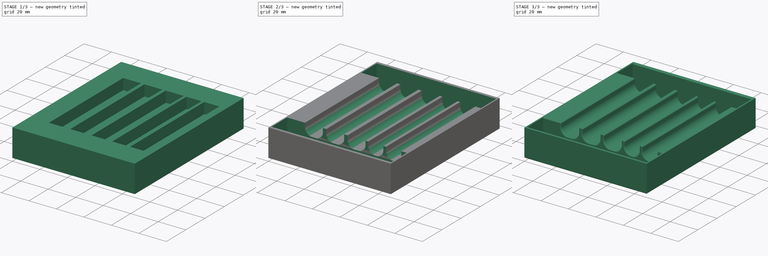
[diagram: build sequence overview — one tinted view per stage of 3, left to right]
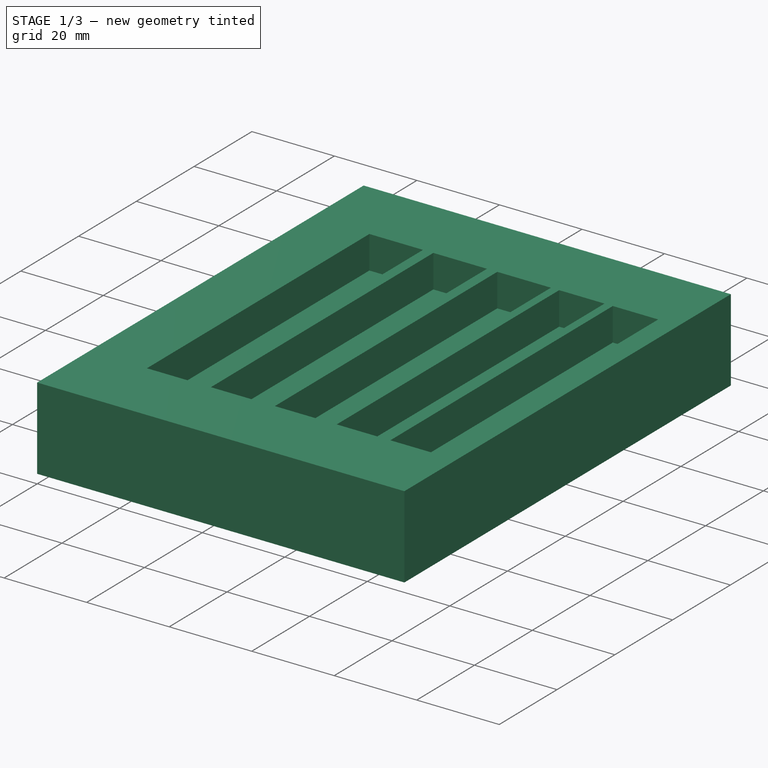
[diagram: stage 1 of 3 — iso view after this stage's code; geometry added in this stage tinted green]
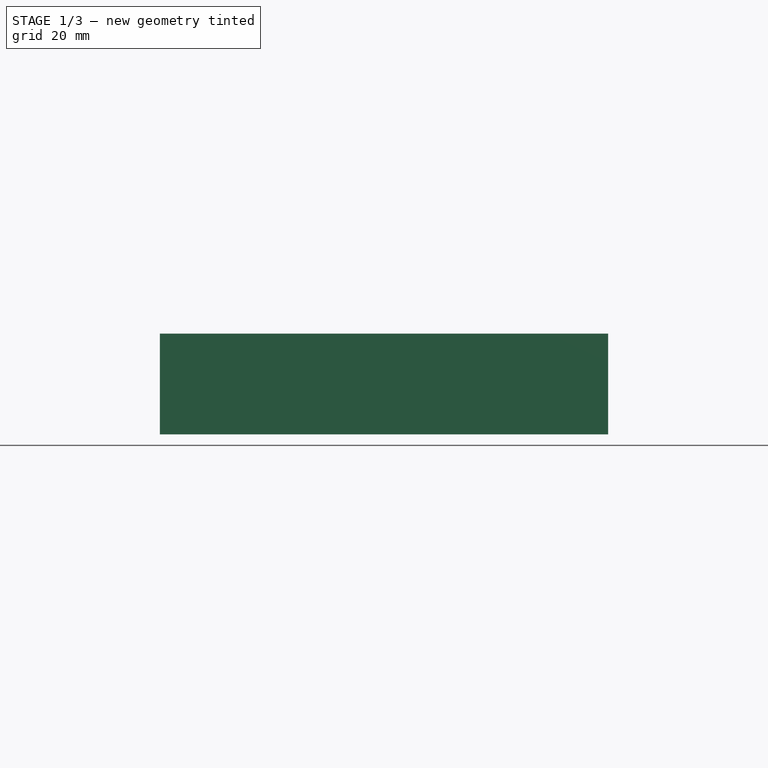
[diagram: stage 1 of 3 — front view after this stage's code; geometry added in this stage tinted green]
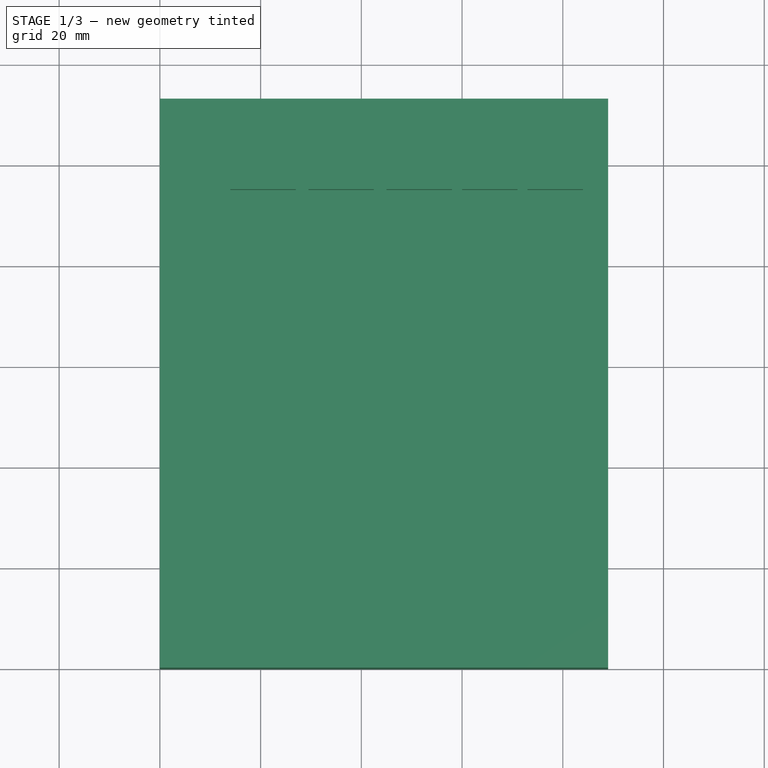
[diagram: stage 1 of 3 — top view after this stage's code; geometry added in this stage tinted green]
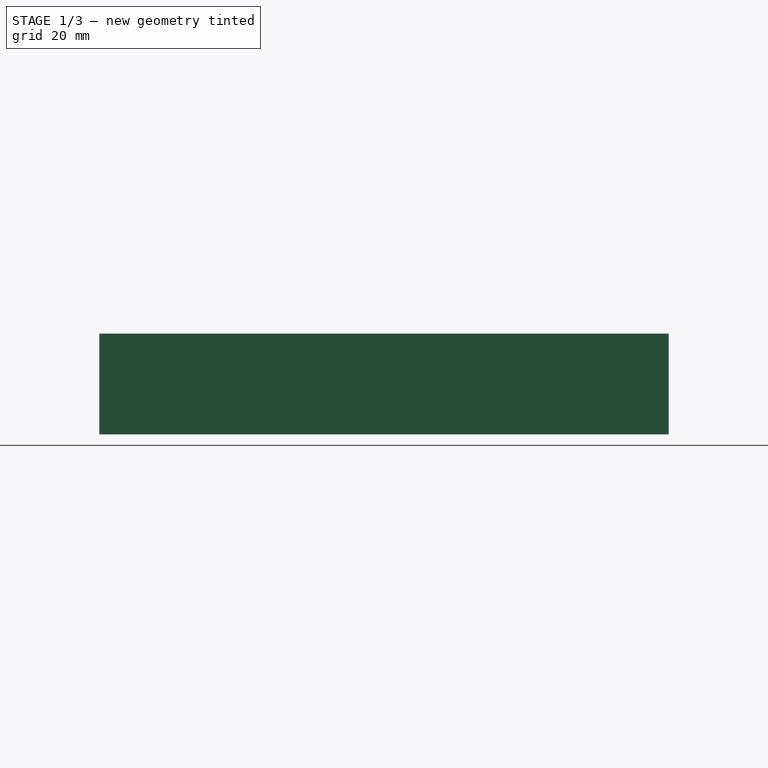
[diagram: stage 1 of 3 — right view after this stage's code; geometry added in this stage tinted green]
FCSTD DOCUMENT  (FreeCAD 1.0R39319 (Git))
Label: Oksaporateline
License: All rights reserved
LicenseURL: https://en.wikipedia.org/wiki/All_rights_reserved
objects: Sketcher::SketchObject×3, PartDesign::Pocket×2, PartDesign::Fillet×2, PartDesign::Pad×1, PartDesign::Chamfer×1, PartDesign::Body×1
note: 25 computed .brp shape members not serialized (recipe doc carries the construction recipe); baked Part::Feature solids carry a one-line shape summary decoded from their .brp

FEATURE [Sketcher::SketchObject] Sketch
  ArcFitTolerance = 1e-06
  AttachmentSupport = -> [XY_Plane]
  FullyConstrained = true
  MakeInternals = false
  MapMode = 5
  sketch-geometry (4):
    g0: LineSegment StartX=0 StartY=0 StartZ=0 EndX=89 EndY=0 EndZ=0
    g1: LineSegment StartX=89 StartY=0 StartZ=0 EndX=89 EndY=113 EndZ=0
    g2: LineSegment StartX=89 StartY=113 StartZ=0 EndX=0 EndY=113 EndZ=0
    g3: LineSegment StartX=0 StartY=113 StartZ=0 EndX=0 EndY=0 EndZ=0
  constraints (11):
    c: Coincident(g0,g1)
    c: Coincident(g1,g2)
    c: Coincident(g2,g3)
    c: Coincident(g3,g0)
    c: Horizontal(g0)
    c: Horizontal(g2)
    c: Vertical(g1)
    c: Vertical(g3)
    c: Coincident(g0,g-1)
    c: DistanceX(g0,g0) = 89
    c: DistanceY(g3,g3) = 113
FEATURE [PartDesign::Pad] Pad
  Direction = (0,0,1)
  Length = 20
  Length2 = 10
  Profile = -> Sketch
  ReferenceAxis = -> Sketch [N_Axis]
  Refine = true
  Suppressed = false
  Type = 0
FEATURE [Sketcher::SketchObject] Sketch001
  ArcFitTolerance = 1e-06
  AttachmentSupport = -> [Pad]
  FullyConstrained = true
  MakeInternals = false
  MapMode = 5
  Placement = pos=(0,0,20) rot=(0,0,1;0rad)
  sketch-geometry (26):
    g0: LineSegment StartX=14 StartY=95 StartZ=0 EndX=14 EndY=18 EndZ=0
    g1: LineSegment StartX=14 StartY=18 StartZ=0 EndX=27 EndY=18 EndZ=0
    g2: LineSegment StartX=27 StartY=18 StartZ=0 EndX=27 EndY=95 EndZ=0
    g3: LineSegment StartX=27 StartY=95 StartZ=0 EndX=14 EndY=95 EndZ=0
    g4: LineSegment StartX=29.5 StartY=95 StartZ=0 EndX=29.5 EndY=18 EndZ=0
    g5: LineSegment StartX=29.5 StartY=18 StartZ=0 EndX=42.5 EndY=18 EndZ=0
    g6: LineSegment StartX=42.5 StartY=18 StartZ=0 EndX=42.5 EndY=95 EndZ=0
    g7: LineSegment StartX=42.5 StartY=95 StartZ=0 EndX=29.5 EndY=95 EndZ=0
    g8: LineSegment StartX=45 StartY=95 StartZ=0 EndX=45 EndY=18 EndZ=0
    g9: LineSegment StartX=45 StartY=18 StartZ=0 EndX=58 EndY=18 EndZ=0
    g10: LineSegment StartX=58 StartY=18 StartZ=0 EndX=58 EndY=95 EndZ=0
    g11: LineSegment StartX=58 StartY=95 StartZ=0 EndX=45 EndY=95 EndZ=0
    g12: LineSegment StartX=60 StartY=95 StartZ=0 EndX=60 EndY=18 EndZ=0
    g13: LineSegment StartX=60 StartY=18 StartZ=0 EndX=71 EndY=18 EndZ=0
    g14: LineSegment StartX=71 StartY=18 StartZ=0 EndX=71 EndY=95 EndZ=0
    g15: LineSegment StartX=71 StartY=95 StartZ=0 EndX=60 EndY=95 EndZ=0
    g16: LineSegment StartX=73 StartY=95 StartZ=0 EndX=73 EndY=18 EndZ=0
    g17: LineSegment StartX=73 StartY=18 StartZ=0 EndX=84 EndY=18 EndZ=0
    g18: LineSegment StartX=84 StartY=18 StartZ=0 EndX=84 EndY=95 EndZ=0
    g19: LineSegment StartX=84 StartY=95 StartZ=0 EndX=73 EndY=95 EndZ=0
    g20: GeomPoint X=36 Y=95 Z=0
    g21: GeomPoint X=20.5 Y=95 Z=0
    g22: GeomPoint X=51.5 Y=95 Z=0
    g23: GeomPoint X=65.5 Y=95 Z=0
    g24: GeomPoint X=78.5 Y=95 Z=0
    g25: LineSegment [constr] StartX=20.5 StartY=95 StartZ=0 EndX=51.5 EndY=95 EndZ=0
  constraints (66):
    c: Coincident(g0,g1)
    c: Coincident(g1,g2)
    c: Coincident(g2,g3)
    c: Coincident(g3,g0)
    c: Vertical(g0)
    c: Vertical(g2)
    c: Horizontal(g1)
    c: Horizontal(g3)
    c: DistanceX(g3,g3) = 13
    c: DistanceY(g2,g2) = 77
    c: Coincident(g4,g5)
    c: Coincident(g5,g6)
    c: Coincident(g6,g7)
    c: Coincident(g7,g4)
    c: Vertical(g4)
    c: Vertical(g6)
    c: Horizontal(g5)
    c: Horizontal(g7)
    c: Coincident(g8,g9)
    c: Coincident(g9,g10)
    c: Coincident(g10,g11)
    c: Coincident(g11,g8)
    c: Vertical(g8)
    c: Vertical(g10)
    c: Horizontal(g9)
    c: Horizontal(g11)
    c: Coincident(g12,g13)
    c: Coincident(g13,g14)
    c: Coincident(g14,g15)
    c: Coincident(g15,g12)
    c: Vertical(g12)
    c: Vertical(g14)
    c: Horizontal(g13)
    c: Horizontal(g15)
    c: Coincident(g16,g17)
    c: Coincident(g17,g18)
    c: Coincident(g18,g19)
    c: Coincident(g19,g16)
    c: Vertical(g16)
    c: Vertical(g18)
    c: Horizontal(g17)
    c: Horizontal(g19)
    c: Horizontal(g2,g4)
    c: Horizontal(g8,g12)
    c: Horizontal(g12,g16)
    c: Horizontal(g1,g4)
    c: Horizontal(g4,g8)
    c: Horizontal(g8,g12)
    c: Horizontal(g12,g16)
    c: DistanceX(g5,g5) = 13
    c: DistanceX(g9,g9) = 13
    c: DistanceX(g13,g13) = 11
    c: DistanceX(g17,g17) = 11
    c: Symmetric(g7,g7,g20)
    c: Symmetric(g3,g3,g21)
    c: Symmetric(g11,g11,g22)
    c: Symmetric(g15,g15,g23)
    c: Symmetric(g19,g19,g24)
    c: DistanceX(g21,g22) = 31
    c: DistanceX(g-1,g21) = 20.5
    c: Coincident(g25,g21)
    c: Coincident(g25,g22)
    c: Symmetric(g25,g25,g20)
    c: DistanceX(g10,g12) = 2
    c: DistanceX(g14,g16) = 2
    c: DistanceY(g-1,g0) = 18
FEATURE [PartDesign::Pocket] Pocket
  BaseFeature = -> Pad
  Direction = (0,0,-1)
  Length = 8
  Length2 = 5
  Profile = -> Sketch001
  ReferenceAxis = -> Sketch001 [N_Axis]
  Refine = true
  Suppressed = false
  Type = 0
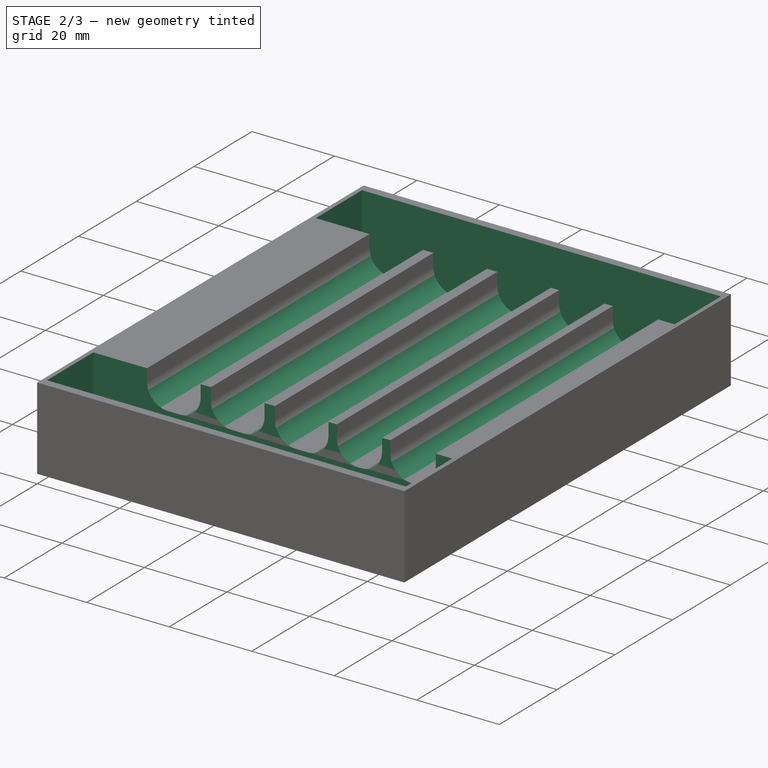
[diagram: stage 2 of 3 — iso view after this stage's code; geometry added in this stage tinted green]
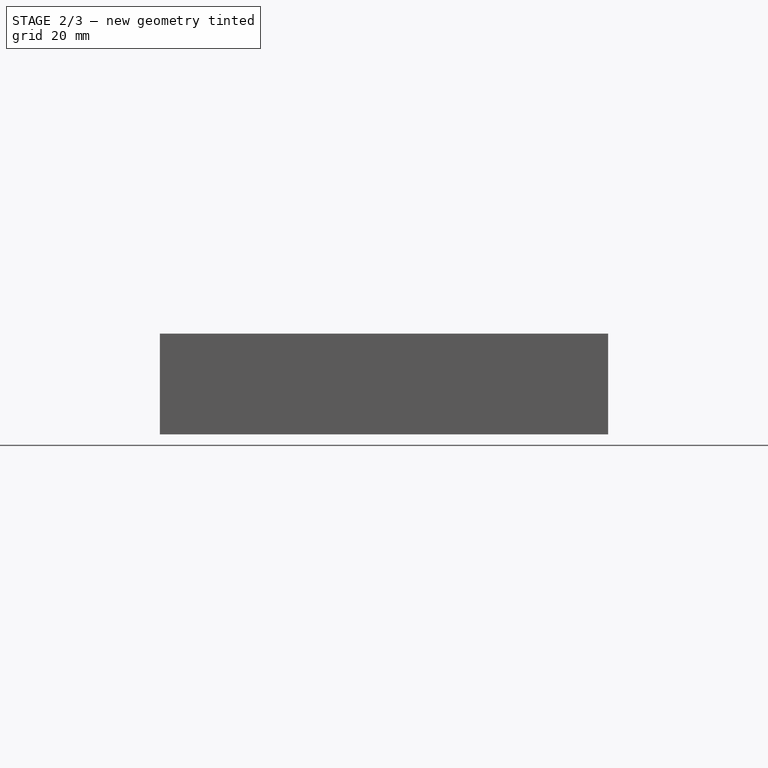
[diagram: stage 2 of 3 — front view after this stage's code; geometry added in this stage tinted green]
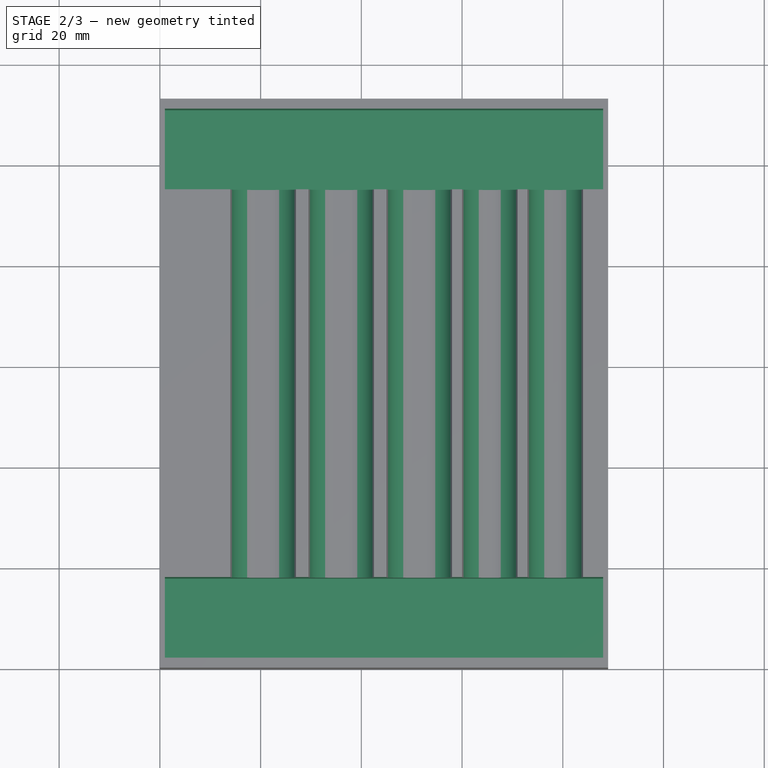
[diagram: stage 2 of 3 — top view after this stage's code; geometry added in this stage tinted green]
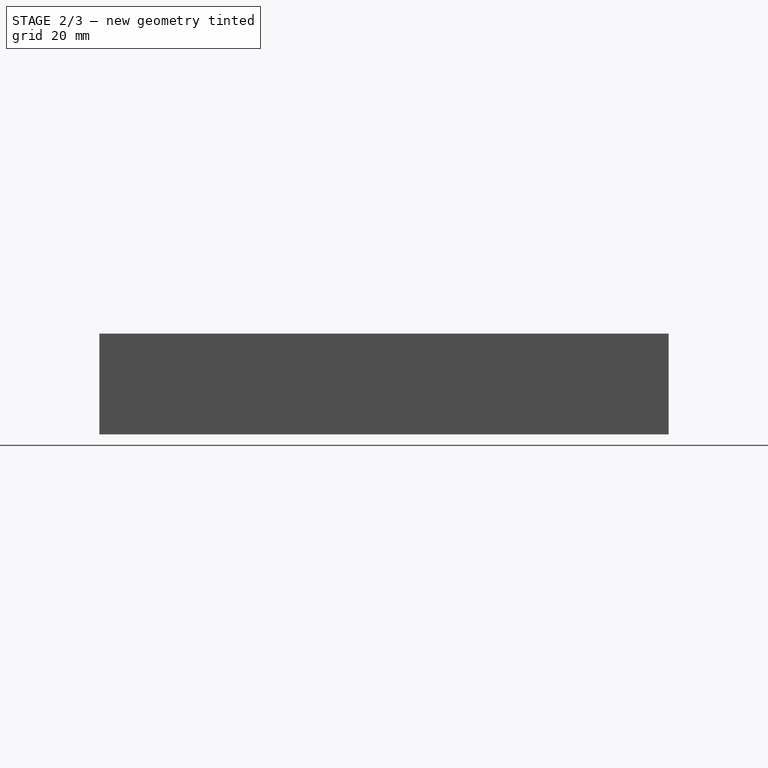
[diagram: stage 2 of 3 — right view after this stage's code; geometry added in this stage tinted green]
FEATURE [Sketcher::SketchObject] Sketch002
  ArcFitTolerance = 1e-06
  AttachmentSupport = -> [Pocket]
  ExternalGeometry = -> [Pocket]
  FullyConstrained = true
  MakeInternals = false
  MapMode = 5
  Placement = pos=(0,0,20) rot=(0,0,1;0rad)
  sketch-geometry (8):
    g0: LineSegment StartX=1 StartY=18 StartZ=0 EndX=1 EndY=2 EndZ=0
    g1: LineSegment StartX=1 StartY=2 StartZ=0 EndX=88 EndY=2 EndZ=0
    g2: LineSegment StartX=88 StartY=2 StartZ=0 EndX=88 EndY=18 EndZ=0
    g3: LineSegment StartX=88 StartY=18 StartZ=0 EndX=1 EndY=18 EndZ=0
    g4: LineSegment StartX=1 StartY=111 StartZ=0 EndX=1 EndY=95 EndZ=0
    g5: LineSegment StartX=1 StartY=95 StartZ=0 EndX=88 EndY=95 EndZ=0
    g6: LineSegment StartX=88 StartY=95 StartZ=0 EndX=88 EndY=111 EndZ=0
    g7: LineSegment StartX=88 StartY=111 StartZ=0 EndX=1 EndY=111 EndZ=0
  constraints (24):
    c: Coincident(g0,g1)
    c: Coincident(g1,g2)
    c: Coincident(g2,g3)
    c: Coincident(g3,g0)
    c: Vertical(g0)
    c: Vertical(g2)
    c: Horizontal(g1)
    c: Horizontal(g3)
    c: Coincident(g4,g5)
    c: Coincident(g5,g6)
    c: Coincident(g6,g7)
    c: Coincident(g7,g4)
    c: Vertical(g4)
    c: Vertical(g6)
    c: Horizontal(g5)
    c: Horizontal(g7)
    c: Vertical(g0,g4)
    c: Vertical(g2,g5)
    c: PointOnObject(g-3,g5)
    c: PointOnObject(g-4,g3)
    c: DistanceY(g0,g0) = 16
    c: Equal(g0,g4)
    c: DistanceX(g-1,g4) = 1
    c: DistanceX(g-5,g5) = 4
FEATURE [PartDesign::Pocket] Pocket001
  BaseFeature = -> Pocket
  Direction = (0,0,-1)
  Length = 18
  Length2 = 5
  Profile = -> Sketch002
  ReferenceAxis = -> Sketch002 [N_Axis]
  Refine = true
  Suppressed = false
  Type = 0
FEATURE [PartDesign::Fillet] Fillet
  Base = -> Pocket001 [Edge81,Edge27,Edge94,Edge90,Edge86,Edge82,Edge93,Edge89,Edge85,Edge55]
  BaseFeature = -> Pocket001
  Radius = 5
  Refine = true
  SupportTransform = false
  Suppressed = false
  UseAllEdges = false
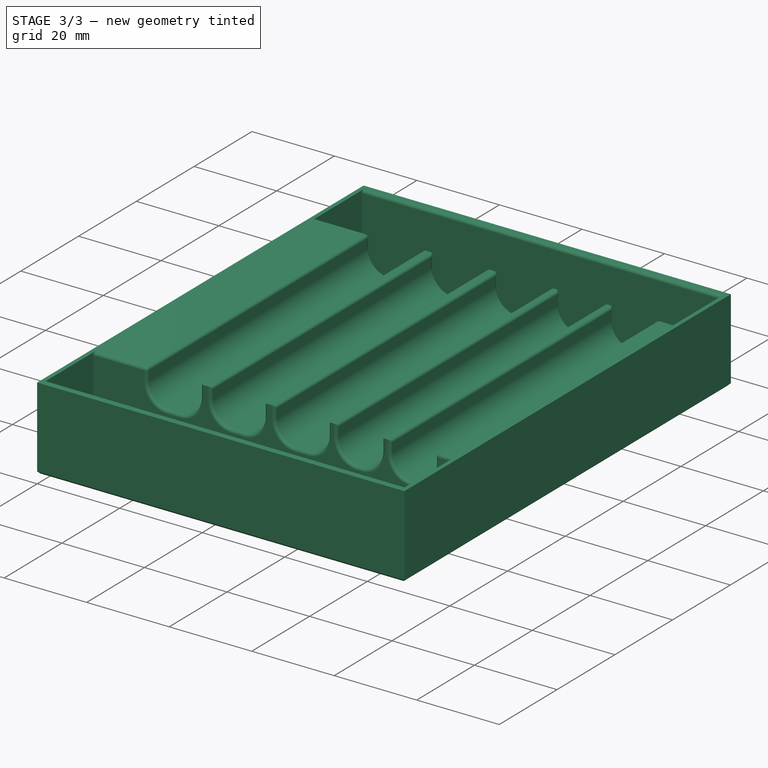
[diagram: stage 3 of 3 — iso view after this stage's code; geometry added in this stage tinted green]
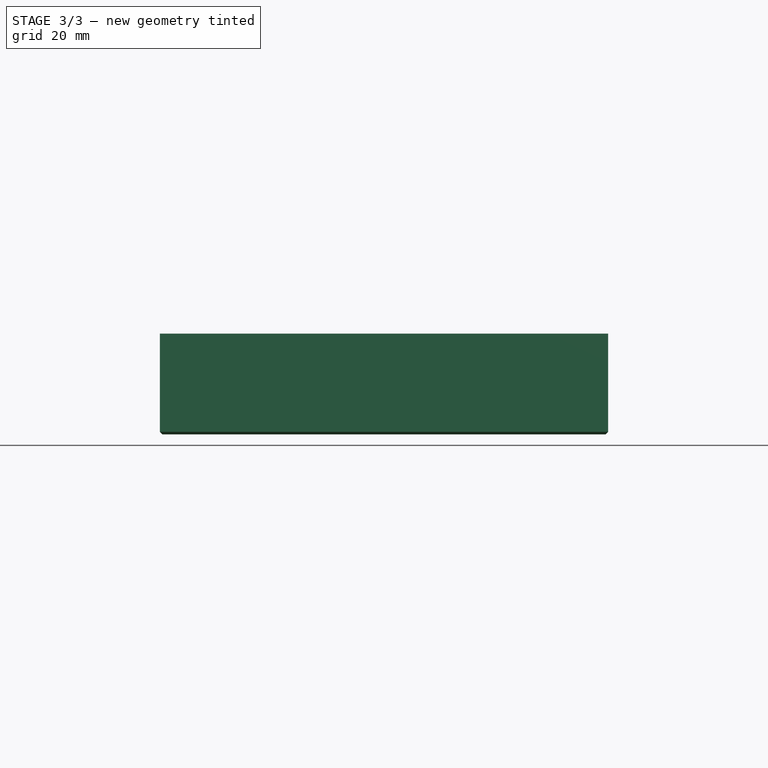
[diagram: stage 3 of 3 — front view after this stage's code; geometry added in this stage tinted green]
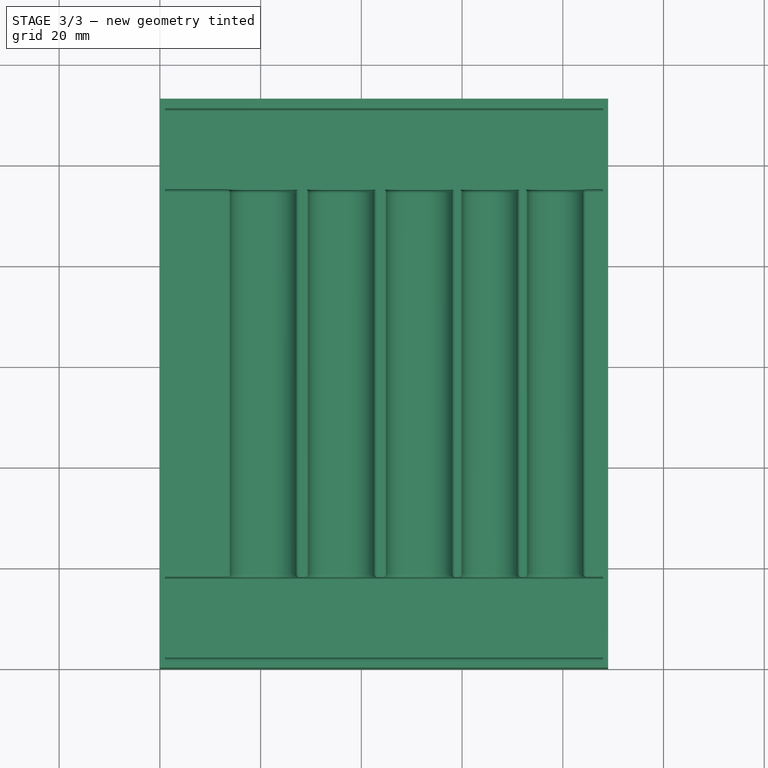
[diagram: stage 3 of 3 — top view after this stage's code; geometry added in this stage tinted green]
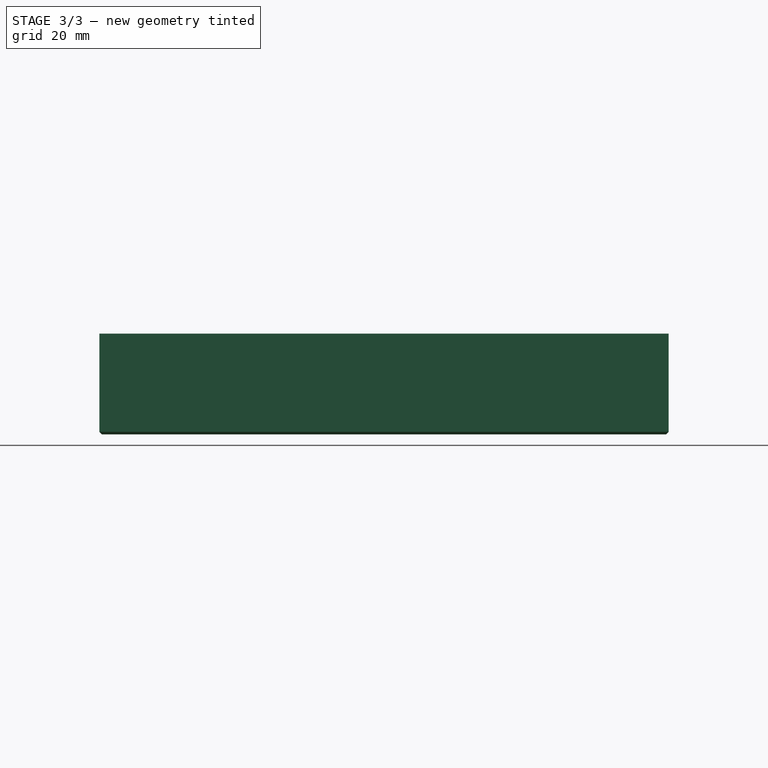
[diagram: stage 3 of 3 — right view after this stage's code; geometry added in this stage tinted green]
FEATURE [PartDesign::Fillet] Fillet001
  Base = -> Fillet [Edge3,Edge91,Edge89,Edge100,Edge112,Edge113,Edge103,Edge101,Edge49,Edge57,Edge66,Edge78,Edge75,Edge39,Edge5,Edge17,Edge102,Edge29,Edge34,Edge22,Edge46,Edge51,Edge6,Edge14,Edge48,Edge44]
  BaseFeature = -> Fillet
  Radius = 0.7
  Refine = true
  SupportTransform = false
  Suppressed = false
  UseAllEdges = false
FEATURE [PartDesign::Chamfer] Chamfer
  Angle = 45
  Base = -> Fillet001 [Edge249,Edge251,Edge254,Edge253]
  BaseFeature = -> Fillet001
  ChamferType = 0
  FlipDirection = false
  Refine = true
  Size = 0.5
  Size2 = 1
  SupportTransform = false
  Suppressed = false
  UseAllEdges = false
FEATURE [PartDesign::Body] Body
  AllowCompound = false
  Group = -> [Sketch,Pad,Sketch001,Pocket,Sketch002,Pocket001,Fillet,Fillet001,Chamfer]
  Origin = -> Origin
  Tip = -> Chamfer
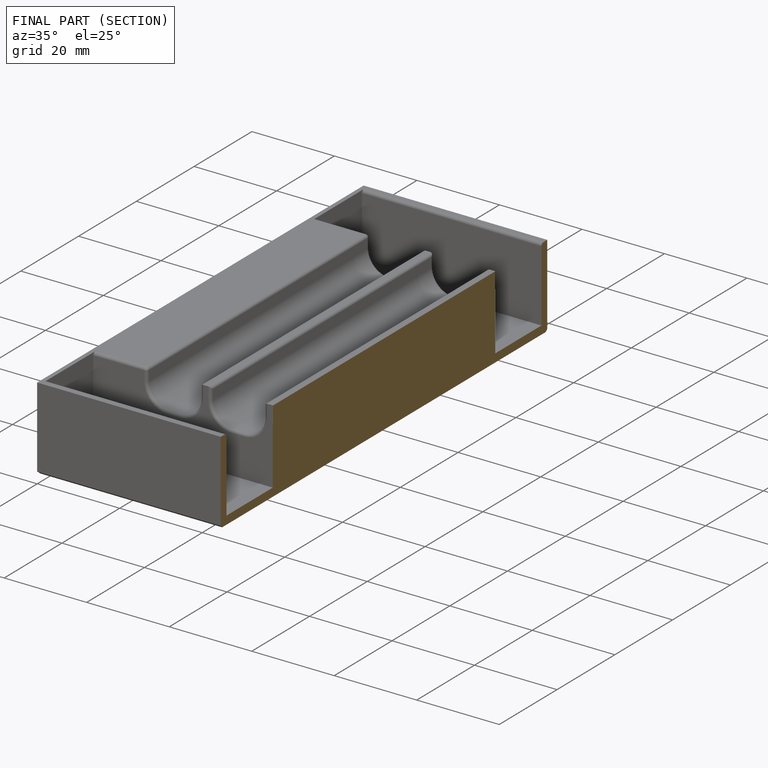
[diagram: finished part — half-section view (interior)]
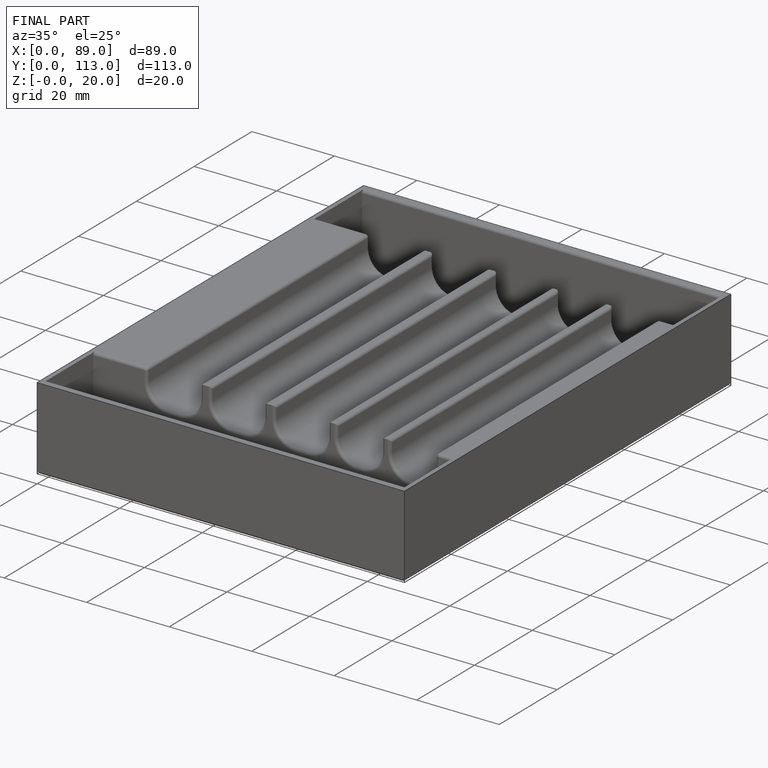
[diagram: finished part — iso view with bounding-box wireframe]
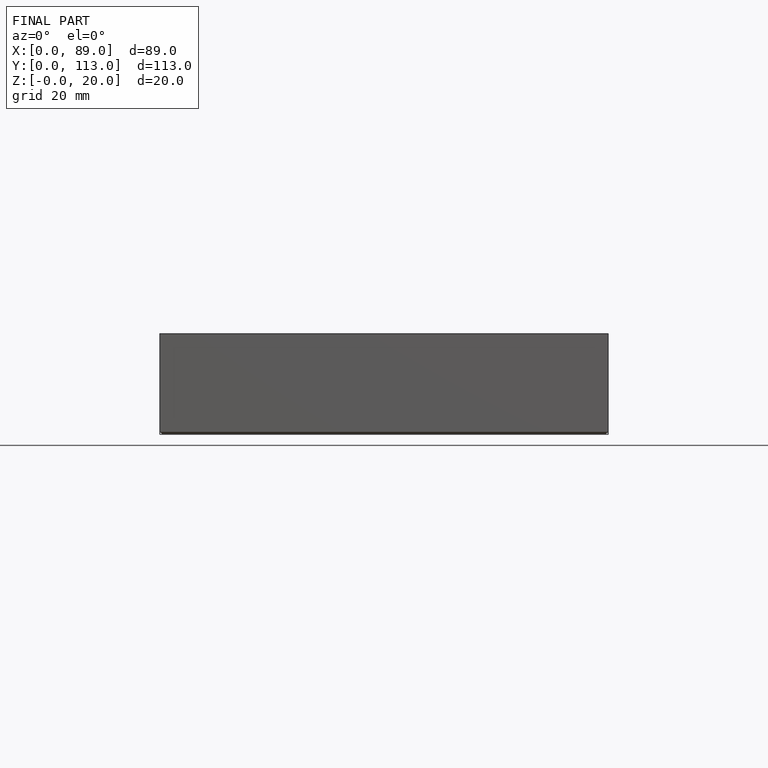
[diagram: finished part — front view with bounding-box wireframe]
